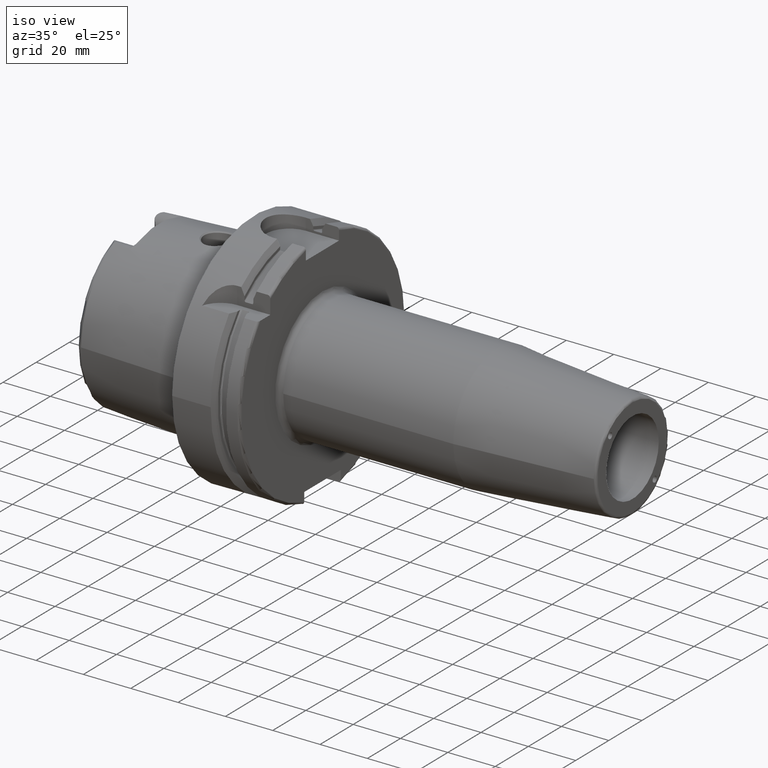
[diagram: clean part render]
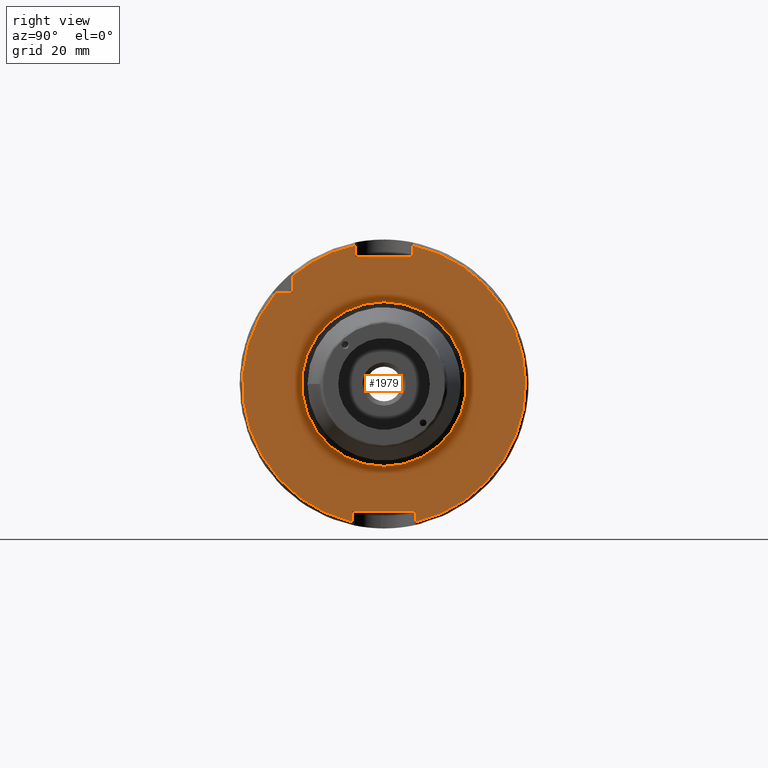
[diagram: tour spotlight — one face highlighted and labeled with its STEP entity id]
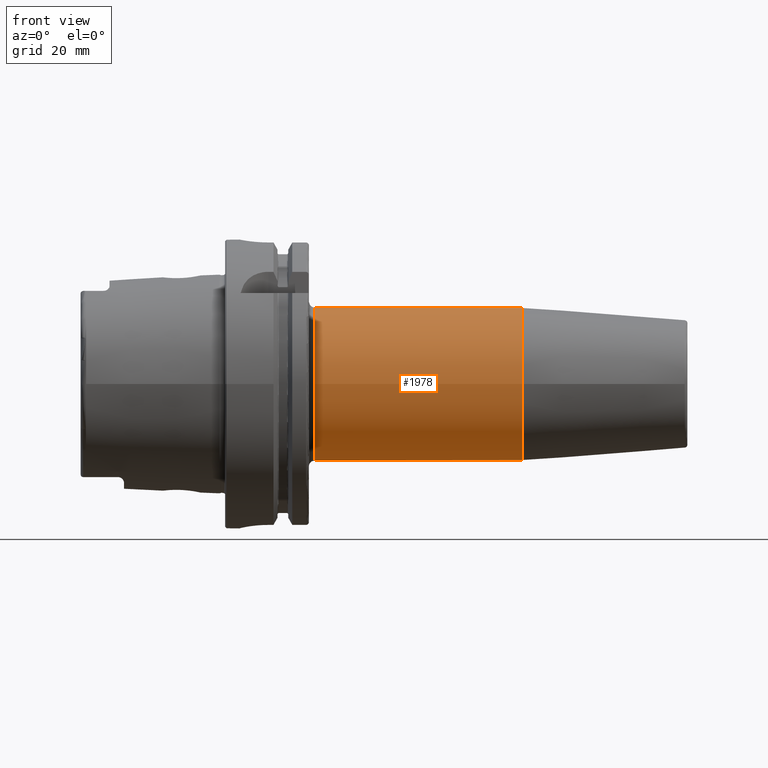
[diagram: tour spotlight — one face highlighted and labeled with its STEP entity id]
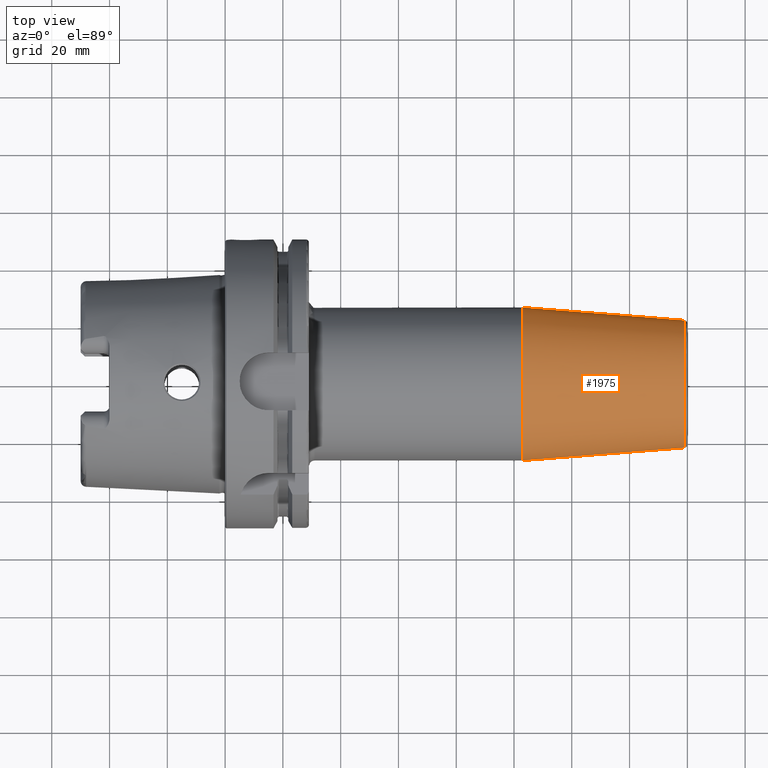
[diagram: tour spotlight — one face highlighted and labeled with its STEP entity id]
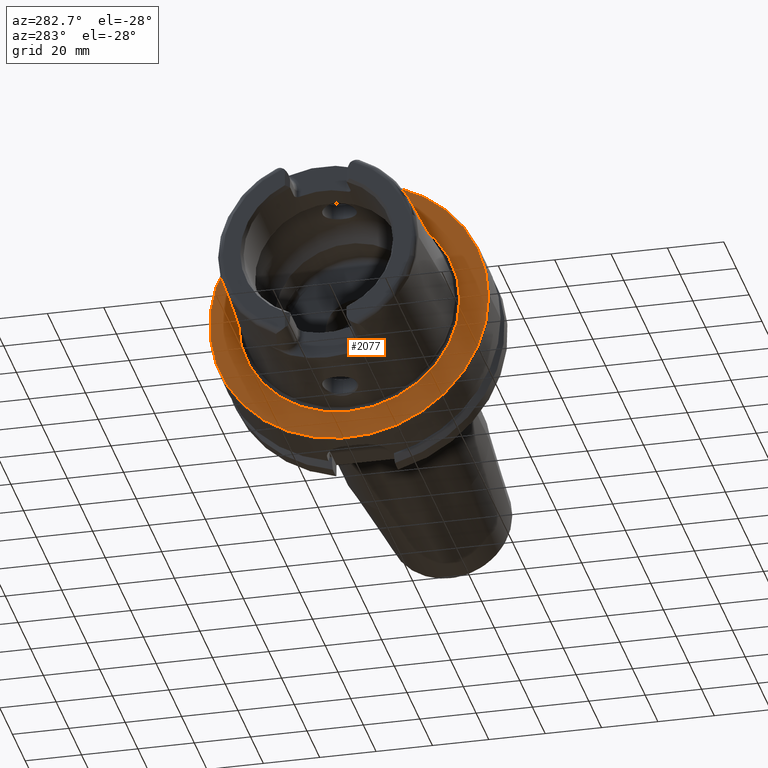
[diagram: tour spotlight — one face highlighted and labeled with its STEP entity id]
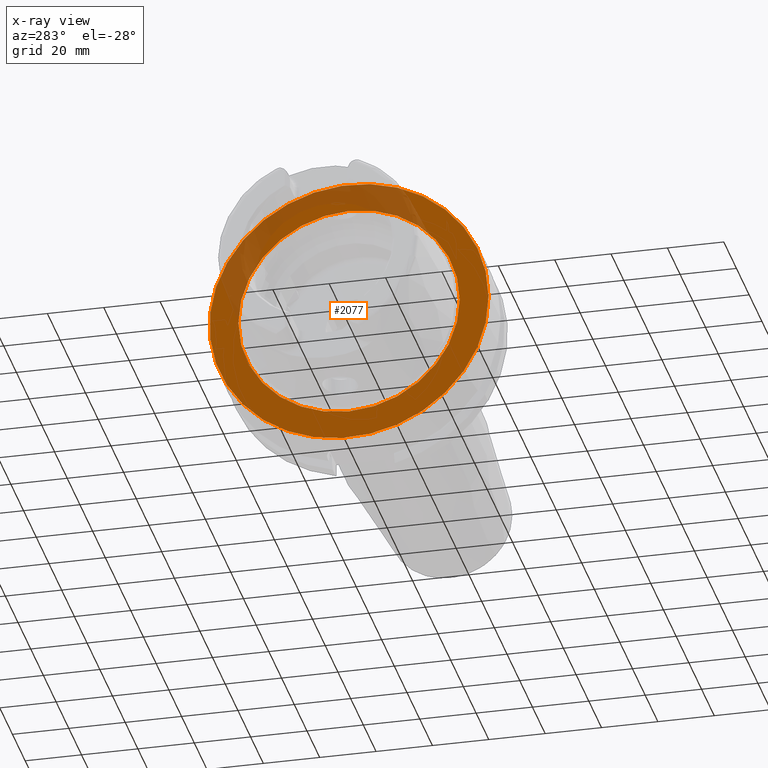
[diagram: x-ray of the same camera — body ghosted, this tour face saturated]
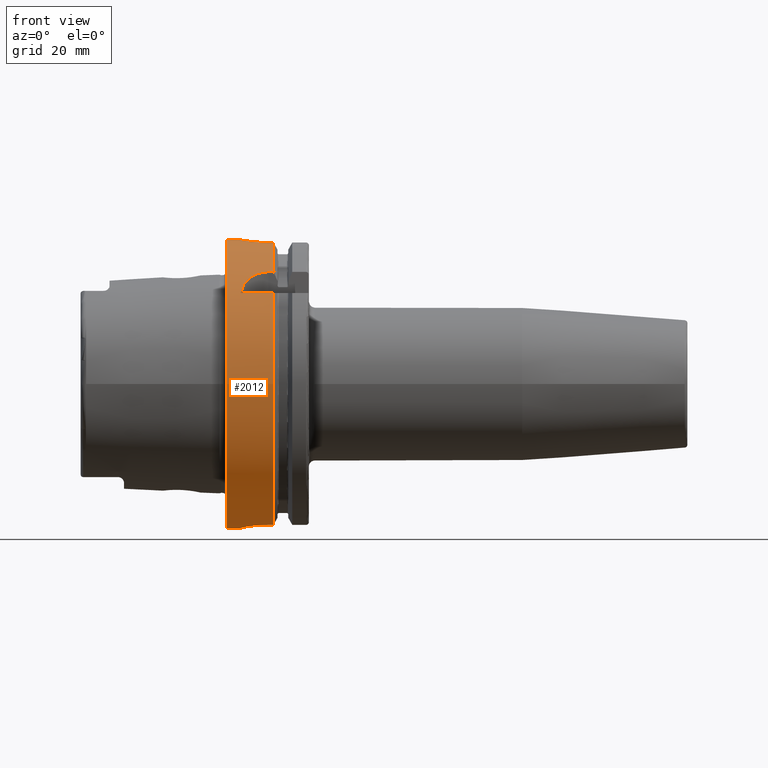
[diagram: tour spotlight — one face highlighted and labeled with its STEP entity id]
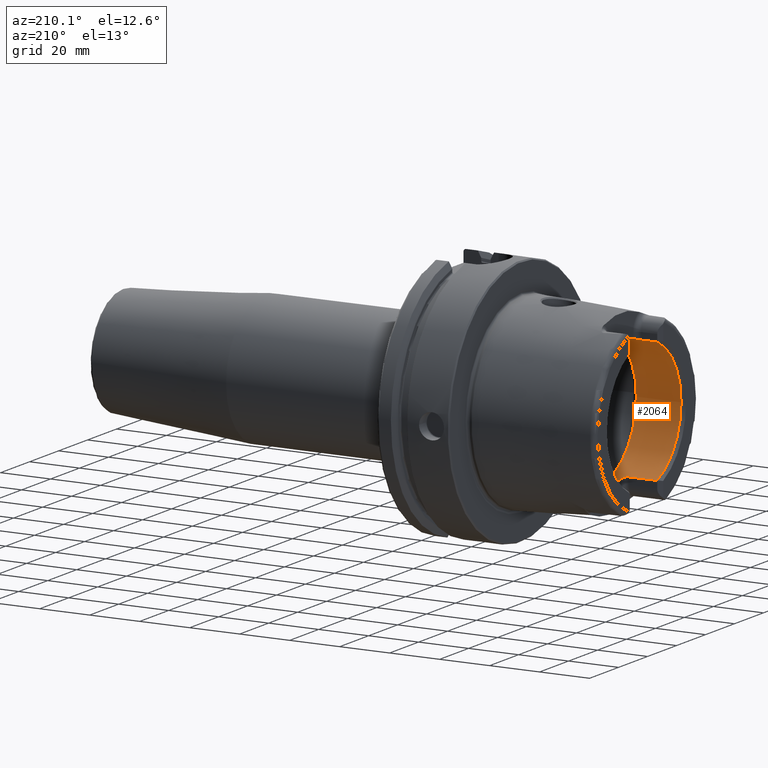
[diagram: tour spotlight — one face highlighted and labeled with its STEP entity id]
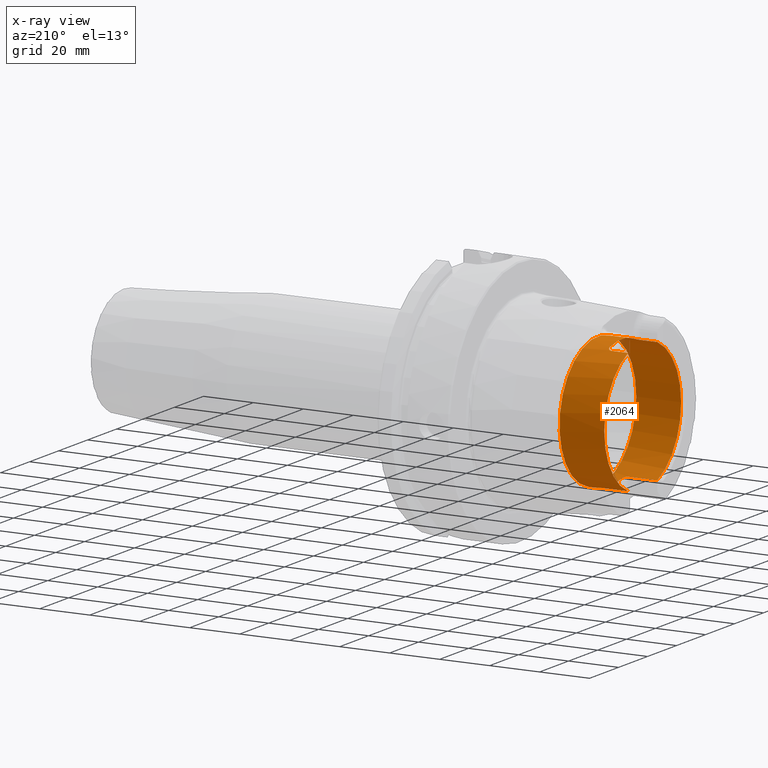
[diagram: x-ray of the same camera — body ghosted, this tour face saturated]
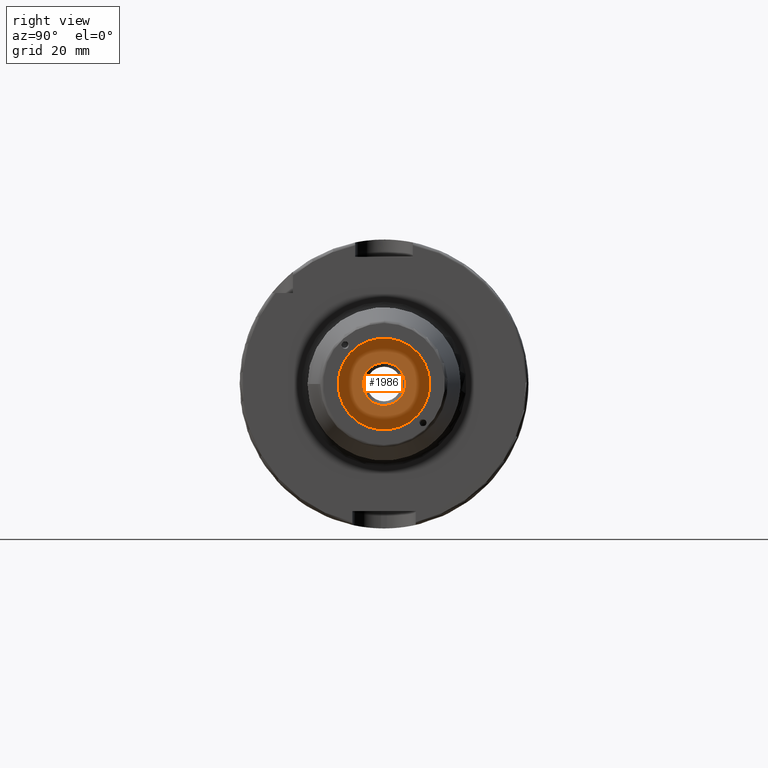
[diagram: tour spotlight — one face highlighted and labeled with its STEP entity id]
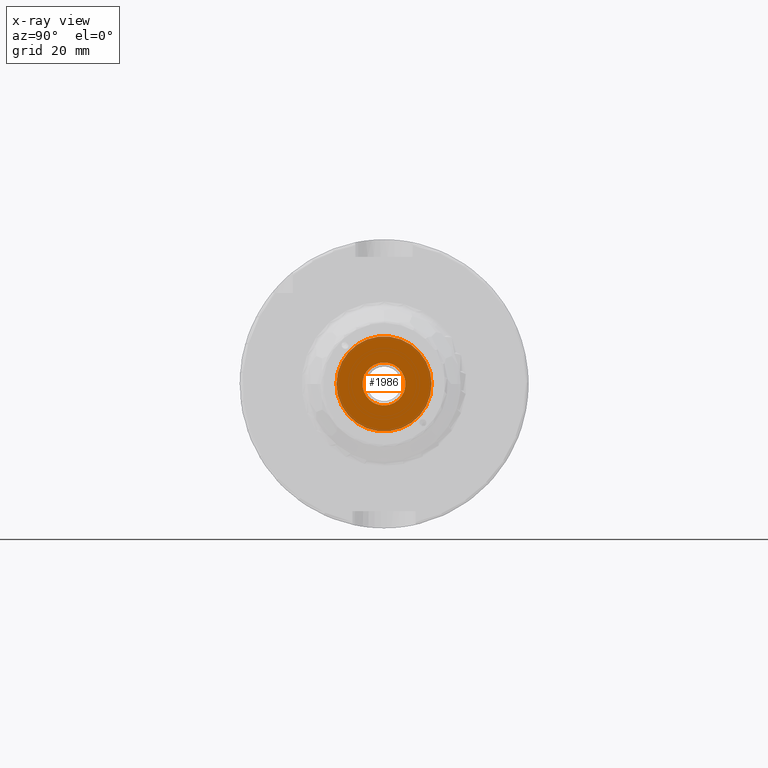
[diagram: x-ray of the same camera — body ghosted, this tour face saturated]
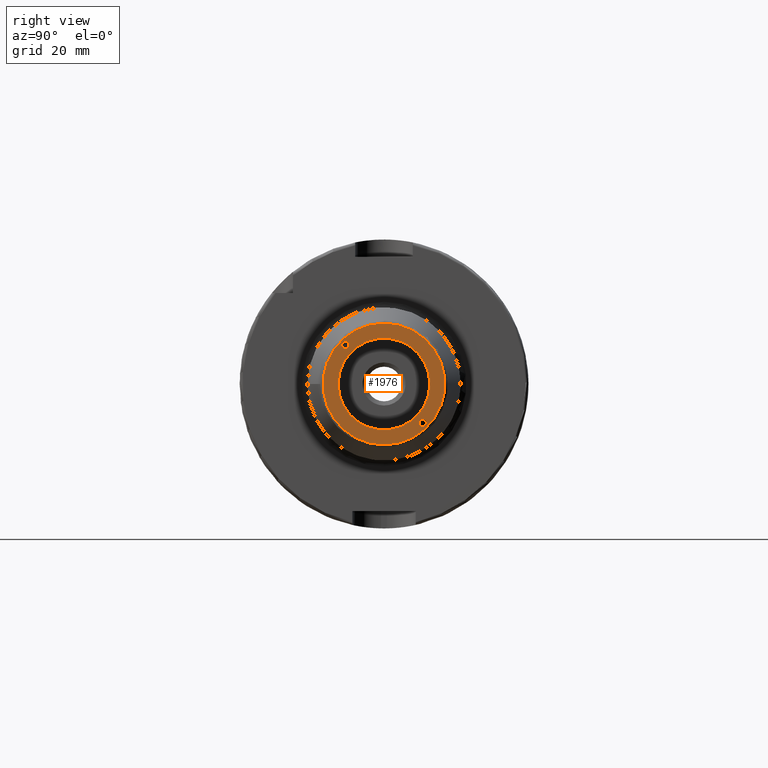
[diagram: tour spotlight — one face highlighted and labeled with its STEP entity id]
A machine part: a face-by-face anatomy tour. The part has 119 B-rep faces; the first image is the clean iso view, then the 8 largest visible faces are spotlighted one at a time (largest first), each with its STEP entity span.

Face 1 — right view, entity #1979. In plain terms, the highlighted planar face has unit normal (1, 0, 0).
Definition (entity closure, byte-faithful):
#88=FACE_BOUND('',#340,.T.);
#99=PLANE('',#2135);
#217=FACE_OUTER_BOUND('',#339,.T.);
#339=EDGE_LOOP('',(#1361,#1362,#1363,#1364,#1365,#1366,#1367,#1368,#1369,
#1370,#1371));
#340=EDGE_LOOP('',(#1372));
#465=LINE('',#3039,#572);
#466=LINE('',#3043,#573);
#467=LINE('',#3045,#574);
#468=LINE('',#3047,#575);
#469=LINE('',#3051,#576);
#470=LINE('',#3053,#577);
#471=LINE('',#3055,#578);
#472=LINE('',#3058,#579);
#572=VECTOR('',#2425,10.);
#573=VECTOR('',#2428,10.);
#574=VECTOR('',#2429,10.);
#575=VECTOR('',#2430,10.);
#576=VECTOR('',#2433,10.);
#577=VECTOR('',#2434,10.);
#578=VECTOR('',#2435,10.);
#579=VECTOR('',#2438,10.);
#683=CIRCLE('',#2132,28.5);
#685=CIRCLE('',#2136,49.);
#686=CIRCLE('',#2137,49.);
#687=CIRCLE('',#2138,49.);
#816=VERTEX_POINT('',#3030);
#817=VERTEX_POINT('',#3037);
#818=VERTEX_POINT('',#3038);
#819=VERTEX_POINT('',#3040);
#820=VERTEX_POINT('',#3042);
#821=VERTEX_POINT('',#3044);
#822=VERTEX_POINT('',#3046);
#823=VERTEX_POINT('',#3048);
#824=VERTEX_POINT('',#3050);
#825=VERTEX_POINT('',#3052);
#826=VERTEX_POINT('',#3054);
#827=VERTEX_POINT('',#3056);
#1025=EDGE_CURVE('',#816,#816,#683,.T.);
#1028=EDGE_CURVE('',#817,#818,#465,.T.);
#1029=EDGE_CURVE('',#818,#819,#685,.T.);
#1030=EDGE_CURVE('',#819,#820,#466,.T.);
#1031=EDGE_CURVE('',#820,#821,#467,.T.);
#1032=EDGE_CURVE('',#821,#822,#468,.T.);
#1033=EDGE_CURVE('',#822,#823,#686,.T.);
#1034=EDGE_CURVE('',#823,#824,#469,.T.);
#1035=EDGE_CURVE('',#824,#825,#470,.T.);
#1036=EDGE_CURVE('',#825,#826,#471,.T.);
#1037=EDGE_CURVE('',#826,#827,#687,.T.);
#1038=EDGE_CURVE('',#827,#817,#472,.T.);
#1361=ORIENTED_EDGE('',*,*,#1028,.T.);
#1362=ORIENTED_EDGE('',*,*,#1029,.T.);
#1363=ORIENTED_EDGE('',*,*,#1030,.T.);
#1364=ORIENTED_EDGE('',*,*,#1031,.T.);
#1365=ORIENTED_EDGE('',*,*,#1032,.T.);
#1366=ORIENTED_EDGE('',*,*,#1033,.T.);
#1367=ORIENTED_EDGE('',*,*,#1034,.T.);
#1368=ORIENTED_EDGE('',*,*,#1035,.T.);
#1369=ORIENTED_EDGE('',*,*,#1036,.T.);
#1370=ORIENTED_EDGE('',*,*,#1037,.T.);
#1371=ORIENTED_EDGE('',*,*,#1038,.T.);
#1372=ORIENTED_EDGE('',*,*,#1025,.F.);
#1979=ADVANCED_FACE('',(#217,#88),#99,.T.);
#2132=AXIS2_PLACEMENT_3D('',#3032,#2416,#2417);
#2135=AXIS2_PLACEMENT_3D('',#3036,#2423,#2424);
#2136=AXIS2_PLACEMENT_3D('',#3041,#2426,#2427);
#2137=AXIS2_PLACEMENT_3D('',#3049,#2431,#2432);
#2138=AXIS2_PLACEMENT_3D('',#3057,#2436,#2437);
#2416=DIRECTION('center_axis',(1.,0.,0.));
#2417=DIRECTION('ref_axis',(0.,-1.,-1.22464679914735E-16));
#2423=DIRECTION('center_axis',(1.,0.,0.));
#2424=DIRECTION('ref_axis',(0.,0.,-1.));
#2425=DIRECTION('',(0.,-1.,0.));
#2426=DIRECTION('center_axis',(1.,0.,0.));
#2427=DIRECTION('ref_axis',(0.,0.,-1.));
#2428=DIRECTION('',(0.,0.,1.));
#2429=DIRECTION('',(0.,1.,0.));
#2430=DIRECTION('',(0.,0.,-1.));
#2431=DIRECTION('center_axis',(1.,0.,0.));
#2432=DIRECTION('ref_axis',(0.,0.,-1.));
#2433=DIRECTION('',(0.,0.,-1.));
#2434=DIRECTION('',(0.,-1.,0.));
#2435=DIRECTION('',(0.,0.,1.));
#2436=DIRECTION('center_axis',(1.,0.,0.));
#2437=DIRECTION('ref_axis',(0.,0.,-1.));
#2438=DIRECTION('',(0.,0.,-1.));
#3030=CARTESIAN_POINT('',(29.,-3.49024337756996E-15,-28.5));
#3032=CARTESIAN_POINT('Origin',(29.,0.,0.));
#3036=CARTESIAN_POINT('Origin',(29.,0.,0.));
#3037=CARTESIAN_POINT('',(29.,-31.5,31.5));
#3038=CARTESIAN_POINT('',(29.,-37.5333185316726,31.5));
#3039=CARTESIAN_POINT('',(29.,-18.25,31.5));
#3040=CARTESIAN_POINT('',(29.,-11.,-47.7493455452533));
#3041=CARTESIAN_POINT('Origin',(29.,0.,0.));
#3042=CARTESIAN_POINT('',(29.,-11.,-44.));
#3043=CARTESIAN_POINT('',(29.,-11.,-22.));
#3044=CARTESIAN_POINT('',(29.,11.,-44.));
#3045=CARTESIAN_POINT('',(29.,-5.55111512312578E-16,-44.));
#3046=CARTESIAN_POINT('',(29.,11.,-47.7493455452533));
#3047=CARTESIAN_POINT('',(29.,11.,-22.));
#3048=CARTESIAN_POINT('',(29.,10.,47.9687398208458));
#3049=CARTESIAN_POINT('Origin',(29.,0.,0.));
#3050=CARTESIAN_POINT('',(29.,10.,44.));
#3051=CARTESIAN_POINT('',(29.,10.,22.));
#3052=CARTESIAN_POINT('',(29.,-10.,44.));
#3053=CARTESIAN_POINT('',(29.,0.,44.));
#3054=CARTESIAN_POINT('',(29.,-10.,47.9687398208458));
#3055=CARTESIAN_POINT('',(29.,-10.,22.));
#3056=CARTESIAN_POINT('',(29.,-31.5,37.5333185316726));
#3057=CARTESIAN_POINT('Origin',(29.,0.,0.));
#3058=CARTESIAN_POINT('',(29.,-31.5,15.75));

Face 2 — front view, entity #1978. In plain terms, the highlighted cylindrical surface (bore or boss wall) has radius 26.5 mm, axis along (1, 0, 0).
Definition (entity closure, byte-faithful):
#173=CYLINDRICAL_SURFACE('',#2134,26.5);
#216=FACE_OUTER_BOUND('',#338,.T.);
#338=EDGE_LOOP('',(#1356,#1357,#1358,#1359,#1360));
#464=LINE('',#3035,#571);
#571=VECTOR('',#2422,26.5);
#679=CIRCLE('',#2126,26.5);
#681=CIRCLE('',#2130,26.5);
#684=CIRCLE('',#2133,26.5);
#812=VERTEX_POINT('',#3020);
#814=VERTEX_POINT('',#3027);
#815=VERTEX_POINT('',#3028);
#1021=EDGE_CURVE('',#812,#812,#679,.T.);
#1023=EDGE_CURVE('',#814,#815,#681,.T.);
#1026=EDGE_CURVE('',#815,#814,#684,.T.);
#1027=EDGE_CURVE('',#812,#814,#464,.T.);
#1356=ORIENTED_EDGE('',*,*,#1021,.F.);
#1357=ORIENTED_EDGE('',*,*,#1027,.T.);
#1358=ORIENTED_EDGE('',*,*,#1026,.F.);
#1359=ORIENTED_EDGE('',*,*,#1023,.F.);
#1360=ORIENTED_EDGE('',*,*,#1027,.F.);
#1978=ADVANCED_FACE('',(#216),#173,.T.);
#2126=AXIS2_PLACEMENT_3D('',#3022,#2404,#2405);
#2130=AXIS2_PLACEMENT_3D('',#3029,#2412,#2413);
#2133=AXIS2_PLACEMENT_3D('',#3033,#2418,#2419);
#2134=AXIS2_PLACEMENT_3D('',#3034,#2420,#2421);
#2404=DIRECTION('center_axis',(1.,0.,0.));
#2405=DIRECTION('ref_axis',(0.,0.,-1.));
#2412=DIRECTION('center_axis',(-1.,0.,0.));
#2413=DIRECTION('ref_axis',(0.,-1.,-1.22464679914735E-16));
#2418=DIRECTION('center_axis',(-1.,0.,0.));
#2419=DIRECTION('ref_axis',(0.,-1.,-1.22464679914735E-16));
#2420=DIRECTION('center_axis',(1.,0.,0.));
#2421=DIRECTION('ref_axis',(0.,1.,0.));
#2422=DIRECTION('',(-1.,0.,0.));
#3020=CARTESIAN_POINT('',(102.822078687214,-26.5,-3.24531401774049E-15));
#3022=CARTESIAN_POINT('Origin',(102.822078687214,0.,0.));
#3027=CARTESIAN_POINT('',(31.,-26.5,-3.24531401774049E-15));
#3028=CARTESIAN_POINT('',(31.,-3.24531401774049E-15,-26.5));
#3029=CARTESIAN_POINT('Origin',(31.,0.,0.));
#3033=CARTESIAN_POINT('Origin',(31.,0.,0.));
#3034=CARTESIAN_POINT('Origin',(65.9110393436069,0.,0.));
#3035=CARTESIAN_POINT('',(65.9110393436069,-26.5,-3.24531401774049E-15));

Face 3 — top view, entity #1975. In plain terms, the highlighted conical surface has half-angle 4.5 deg.
Definition (entity closure, byte-faithful):
#213=FACE_OUTER_BOUND('',#332,.T.);
#332=EDGE_LOOP('',(#1342,#1343,#1344,#1345,#1346));
#463=LINE('',#3021,#570);
#570=VECTOR('',#2403,24.25);
#677=CIRCLE('',#2123,22.0725268420749);
#678=CIRCLE('',#2124,22.0725268420749);
#679=CIRCLE('',#2126,26.5);
#810=VERTEX_POINT('',#3014);
#811=VERTEX_POINT('',#3016);
#812=VERTEX_POINT('',#3020);
#1018=EDGE_CURVE('',#810,#811,#677,.T.);
#1019=EDGE_CURVE('',#811,#810,#678,.T.);
#1020=EDGE_CURVE('',#811,#812,#463,.T.);
#1021=EDGE_CURVE('',#812,#812,#679,.T.);
#1342=ORIENTED_EDGE('',*,*,#1019,.F.);
#1343=ORIENTED_EDGE('',*,*,#1020,.T.);
#1344=ORIENTED_EDGE('',*,*,#1021,.T.);
#1345=ORIENTED_EDGE('',*,*,#1020,.F.);
#1346=ORIENTED_EDGE('',*,*,#1018,.F.);
#1955=CONICAL_SURFACE('',#2125,24.25,0.0785398163397448);
#1975=ADVANCED_FACE('',(#213),#1955,.T.);
#2123=AXIS2_PLACEMENT_3D('',#3017,#2397,#2398);
#2124=AXIS2_PLACEMENT_3D('',#3018,#2399,#2400);
#2125=AXIS2_PLACEMENT_3D('',#3019,#2401,#2402);
#2126=AXIS2_PLACEMENT_3D('',#3022,#2404,#2405);
#2397=DIRECTION('center_axis',(1.,0.,0.));
#2398=DIRECTION('ref_axis',(0.,-1.,3.06161699786838E-17));
#2399=DIRECTION('center_axis',(1.,0.,0.));
#2400=DIRECTION('ref_axis',(0.,-1.,3.06161699786838E-17));
#2401=DIRECTION('center_axis',(-1.,0.,0.));
#2402=DIRECTION('ref_axis',(0.,1.,0.));
#2403=DIRECTION('',(-0.996917333733128,-0.0784590957278449,-9.60846804471011E-18));
#2404=DIRECTION('center_axis',(1.,0.,0.));
#2405=DIRECTION('ref_axis',(0.,0.,-1.));
#3014=CARTESIAN_POINT('',(159.078459095728,-2.70310493462411E-15,22.0725268420749));
#3016=CARTESIAN_POINT('',(159.078459095728,-22.0725268420749,-2.70310493462411E-15));
#3017=CARTESIAN_POINT('Origin',(159.078459095728,0.,-3.37888116828014E-15));
#3018=CARTESIAN_POINT('Origin',(159.078459095728,0.,-3.37888116828014E-15));
#3019=CARTESIAN_POINT('Origin',(131.411039343607,0.,0.));
#3020=CARTESIAN_POINT('',(102.822078687214,-26.5,-3.24531401774049E-15));
#3021=CARTESIAN_POINT('',(131.411039343607,-24.25,-2.96976848793233E-15));
#3022=CARTESIAN_POINT('Origin',(102.822078687214,0.,0.));

Face 4 — auxiliary view, entity #2077. An x-ray twin of the same camera follows (body ghosted, this face saturated) — the face is partly hidden behind the body. In plain terms, the highlighted planar face has unit normal (-1, 0, 0).
Definition (entity closure, byte-faithful):
#97=FACE_BOUND('',#447,.T.);
#133=PLANE('',#2346);
#315=FACE_OUTER_BOUND('',#446,.T.);
#446=EDGE_LOOP('',(#1903));
#447=EDGE_LOOP('',(#1904));
#791=CIRCLE('',#2345,39.2747800249997);
#792=CIRCLE('',#2347,49.5);
#1003=VERTEX_POINT('',#4477);
#1004=VERTEX_POINT('',#4481);
#1308=EDGE_CURVE('',#1003,#1003,#791,.T.);
#1309=EDGE_CURVE('',#1004,#1004,#792,.T.);
#1903=ORIENTED_EDGE('',*,*,#1309,.F.);
#1904=ORIENTED_EDGE('',*,*,#1308,.T.);
#2077=ADVANCED_FACE('',(#315,#97),#133,.T.);
#2345=AXIS2_PLACEMENT_3D('',#4479,#2941,#2942);
#2346=AXIS2_PLACEMENT_3D('',#4480,#2943,#2944);
#2347=AXIS2_PLACEMENT_3D('',#4482,#2945,#2946);
#2941=DIRECTION('center_axis',(1.,0.,0.));
#2942=DIRECTION('ref_axis',(0.,0.,-1.));
#2943=DIRECTION('center_axis',(-1.,0.,0.));
#2944=DIRECTION('ref_axis',(0.,0.,1.));
#2945=DIRECTION('center_axis',(1.,0.,0.));
#2946=DIRECTION('ref_axis',(0.,0.,-1.));
#4477=CARTESIAN_POINT('',(-1.04950770296597E-15,-39.2747800249997,-4.80977336448322E-15));
#4479=CARTESIAN_POINT('Origin',(0.,0.,0.));
#4480=CARTESIAN_POINT('Origin',(0.,49.5,0.));
#4481=CARTESIAN_POINT('',(1.28369537222284E-15,-49.5,-6.0620016557794E-15));
#4482=CARTESIAN_POINT('Origin',(0.,0.,0.));

Face 5 — front view, entity #2012. In plain terms, the highlighted cylindrical surface (bore or boss wall) has radius 50 mm, axis along (1, 0, 0).
Definition (entity closure, byte-faithful):
#56=B_SPLINE_CURVE_WITH_KNOTS('',3,(#3833,#3834,#3835,#3836,#3837,#3838,
#3839,#3840,#3841,#3842,#3843,#3844,#3845,#3846,#3847,#3848,#3849,#3850,
#3851,#3852,#3853,#3854,#3855,#3856,#3857,#3858),.UNSPECIFIED.,.F.,.F.,
(4,2,2,2,2,2,2,2,2,2,2,2,4),(0.,0.188478911015149,0.376957822030298,0.565436091508923,
0.753914360987547,0.942392630466172,1.1308708999448,1.31934981095995,1.50782872197509,
1.69630763299024,1.88478654400539,2.07326481348402,2.26174308296264),
 .UNSPECIFIED.);
#57=B_SPLINE_CURVE_WITH_KNOTS('',3,(#3859,#3860,#3861,#3862,#3863,#3864,
#3865,#3866,#3867,#3868),.UNSPECIFIED.,.F.,.F.,(4,2,2,2,4),(2.26174308296264,
2.45022135244127,2.63869962191989,2.82717853293504,3.01565744395019),
 .UNSPECIFIED.);
#58=B_SPLINE_CURVE_WITH_KNOTS('',3,(#3872,#3873,#3874,#3875,#3876,#3877,
#3878,#3879,#3880,#3881,#3882,#3883),.UNSPECIFIED.,.F.,.F.,(4,2,2,2,2,4),
(1.13213255574021,1.59216410027009,1.87572541272146,2.15928672517283,2.38471683342296,
2.61014694167308),.UNSPECIFIED.);
#65=B_SPLINE_CURVE_WITH_KNOTS('',3,(#3996,#3997,#3998,#3999,#4000,#4001,
#4002,#4003,#4004,#4005,#4006,#4007,#4008,#4009,#4010,#4011,#4012,#4013),
 .UNSPECIFIED.,.F.,.F.,(4,2,2,2,2,2,2,2,4),(0.,0.377795255890194,0.755590511780389,
1.13336459804459,1.51113868430879,1.88891277057299,2.26668685683718,2.64448211272738,
3.02227736861757),.UNSPECIFIED.);
#66=B_SPLINE_CURVE_WITH_KNOTS('',3,(#4021,#4022,#4023,#4024,#4025,#4026,
#4027,#4028,#4029,#4030),.UNSPECIFIED.,.F.,.F.,(4,2,2,2,4),(0.,0.377863193874929,
0.755726387749858,1.13417752669663,1.51262866564341),.UNSPECIFIED.);
#67=B_SPLINE_CURVE_WITH_KNOTS('',3,(#4034,#4035,#4036,#4037,#4038,#4039,
#4040,#4041,#4042,#4043),.UNSPECIFIED.,.F.,.F.,(4,2,2,2,4),(1.50996806152532,
1.8884192004721,2.26687033941887,2.6447335332938,3.02259672716873),
 .UNSPECIFIED.);
#93=FACE_BOUND('',#378,.T.);
#186=CYLINDRICAL_SURFACE('',#2216,50.);
#250=FACE_OUTER_BOUND('',#377,.T.);
#377=EDGE_LOOP('',(#1565,#1566,#1567,#1568,#1569,#1570,#1571,#1572,#1573,
#1574,#1575,#1576,#1577,#1578,#1579,#1580,#1581,#1582));
#378=EDGE_LOOP('',(#1583,#1584));
#504=LINE('',#3889,#611);
#510=LINE('',#3941,#617);
#515=LINE('',#3994,#622);
#516=LINE('',#4015,#623);
#517=LINE('',#4019,#624);
#518=LINE('',#4045,#625);
#519=LINE('',#4049,#626);
#611=VECTOR('',#2622,10.);
#617=VECTOR('',#2630,10.);
#622=VECTOR('',#2639,10.);
#623=VECTOR('',#2640,10.);
#624=VECTOR('',#2643,10.);
#625=VECTOR('',#2646,10.);
#626=VECTOR('',#2649,50.);
#727=CIRCLE('',#2217,50.);
#728=CIRCLE('',#2218,50.);
#729=CIRCLE('',#2219,50.);
#730=CIRCLE('',#2220,50.);
#731=CIRCLE('',#2221,50.);
#732=CIRCLE('',#2222,50.);
#903=VERTEX_POINT('',#3830);
#904=VERTEX_POINT('',#3832);
#905=VERTEX_POINT('',#3870);
#906=VERTEX_POINT('',#3871);
#908=VERTEX_POINT('',#3888);
#917=VERTEX_POINT('',#3940);
#926=VERTEX_POINT('',#3991);
#927=VERTEX_POINT('',#3993);
#928=VERTEX_POINT('',#3995);
#929=VERTEX_POINT('',#4014);
#930=VERTEX_POINT('',#4016);
#931=VERTEX_POINT('',#4018);
#932=VERTEX_POINT('',#4020);
#933=VERTEX_POINT('',#4031);
#934=VERTEX_POINT('',#4033);
#935=VERTEX_POINT('',#4044);
#936=VERTEX_POINT('',#4046);
#937=VERTEX_POINT('',#4048);
#1142=EDGE_CURVE('',#904,#903,#56,.T.);
#1143=EDGE_CURVE('',#903,#904,#57,.T.);
#1144=EDGE_CURVE('',#905,#906,#58,.T.);
#1147=EDGE_CURVE('',#906,#908,#504,.T.);
#1158=EDGE_CURVE('',#917,#905,#510,.T.);
#1168=EDGE_CURVE('',#926,#908,#727,.T.);
#1169=EDGE_CURVE('',#926,#927,#515,.T.);
#1170=EDGE_CURVE('',#927,#928,#65,.T.);
#1171=EDGE_CURVE('',#928,#929,#516,.T.);
#1172=EDGE_CURVE('',#930,#929,#728,.T.);
#1173=EDGE_CURVE('',#930,#931,#517,.T.);
#1174=EDGE_CURVE('',#931,#932,#66,.T.);
#1175=EDGE_CURVE('',#932,#933,#729,.T.);
#1176=EDGE_CURVE('',#933,#934,#67,.T.);
#1177=EDGE_CURVE('',#934,#935,#518,.T.);
#1178=EDGE_CURVE('',#936,#935,#730,.T.);
#1179=EDGE_CURVE('',#936,#937,#519,.T.);
#1180=EDGE_CURVE('',#937,#937,#731,.T.);
#1181=EDGE_CURVE('',#917,#936,#732,.T.);
#1565=ORIENTED_EDGE('',*,*,#1158,.T.);
#1566=ORIENTED_EDGE('',*,*,#1144,.T.);
#1567=ORIENTED_EDGE('',*,*,#1147,.T.);
#1568=ORIENTED_EDGE('',*,*,#1168,.F.);
#1569=ORIENTED_EDGE('',*,*,#1169,.T.);
#1570=ORIENTED_EDGE('',*,*,#1170,.T.);
#1571=ORIENTED_EDGE('',*,*,#1171,.T.);
#1572=ORIENTED_EDGE('',*,*,#1172,.F.);
#1573=ORIENTED_EDGE('',*,*,#1173,.T.);
#1574=ORIENTED_EDGE('',*,*,#1174,.T.);
#1575=ORIENTED_EDGE('',*,*,#1175,.T.);
#1576=ORIENTED_EDGE('',*,*,#1176,.T.);
#1577=ORIENTED_EDGE('',*,*,#1177,.T.);
#1578=ORIENTED_EDGE('',*,*,#1178,.F.);
#1579=ORIENTED_EDGE('',*,*,#1179,.T.);
#1580=ORIENTED_EDGE('',*,*,#1180,.T.);
#1581=ORIENTED_EDGE('',*,*,#1179,.F.);
#1582=ORIENTED_EDGE('',*,*,#1181,.F.);
#1583=ORIENTED_EDGE('',*,*,#1142,.T.);
#1584=ORIENTED_EDGE('',*,*,#1143,.T.);
#2012=ADVANCED_FACE('',(#250,#93),#186,.T.);
#2216=AXIS2_PLACEMENT_3D('',#3990,#2635,#2636);
#2217=AXIS2_PLACEMENT_3D('',#3992,#2637,#2638);
#2218=AXIS2_PLACEMENT_3D('',#4017,#2641,#2642);
#2219=AXIS2_PLACEMENT_3D('',#4032,#2644,#2645);
#2220=AXIS2_PLACEMENT_3D('',#4047,#2647,#2648);
#2221=AXIS2_PLACEMENT_3D('',#4050,#2650,#2651);
#2222=AXIS2_PLACEMENT_3D('',#4051,#2652,#2653);
#2622=DIRECTION('',(1.,0.,0.));
#2630=DIRECTION('',(-1.,0.,0.));
#2635=DIRECTION('center_axis',(1.,0.,0.));
#2636=DIRECTION('ref_axis',(0.,1.,0.));
#2637=DIRECTION('center_axis',(1.,0.,0.));
#2638=DIRECTION('ref_axis',(0.,0.,-1.));
#2639=DIRECTION('',(-1.,0.,0.));
#2640=DIRECTION('',(1.,0.,0.));
#2641=DIRECTION('center_axis',(1.,0.,0.));
#2642=DIRECTION('ref_axis',(0.,0.,-1.));
#2643=DIRECTION('',(-1.,0.,0.));
#2644=DIRECTION('center_axis',(-1.,0.,0.));
#2645=DIRECTION('ref_axis',(0.,1.,0.));
#2646=DIRECTION('',(1.,0.,0.));
#2647=DIRECTION('center_axis',(1.,0.,0.));
#2648=DIRECTION('ref_axis',(0.,0.,-1.));
#2649=DIRECTION('',(-1.,0.,0.));
#2650=DIRECTION('center_axis',(1.,0.,0.));
#2651=DIRECTION('ref_axis',(0.,0.,-1.));
#2652=DIRECTION('center_axis',(1.,0.,0.));
#2653=DIRECTION('ref_axis',(0.,0.,-1.));
#3830=CARTESIAN_POINT('',(12.,50.,-6.12323399573677E-16));
#3832=CARTESIAN_POINT('',(6.99999999999999,49.749371855331,5.));
#3833=CARTESIAN_POINT('Ctrl Pts',(6.99999999999999,49.749371855331,5.));
#3834=CARTESIAN_POINT('Ctrl Pts',(6.37173696328283,49.749371855331,5.));
#3835=CARTESIAN_POINT('Ctrl Pts',(5.70188570880885,49.7624993987098,4.87435544587055));
#3836=CARTESIAN_POINT('Ctrl Pts',(4.4701142477173,49.8098541153698,4.36395693611591));
#3837=CARTESIAN_POINT('Ctrl Pts',(3.90815809537484,49.8433908660961,3.97922590724033));
#3838=CARTESIAN_POINT('Ctrl Pts',(3.02077560297968,49.9062957431473,3.09184341484517));
#3839=CARTESIAN_POINT('Ctrl Pts',(2.63604339567929,49.9397591808605,2.52988660036719));
#3840=CARTESIAN_POINT('Ctrl Pts',(2.12564400622109,49.9869460568296,1.29811292154946));
#3841=CARTESIAN_POINT('Ctrl Pts',(1.99999999999999,50.,0.628260898262081));
#3842=CARTESIAN_POINT('Ctrl Pts',(1.99999999999999,50.,-0.628260898262082));
#3843=CARTESIAN_POINT('Ctrl Pts',(2.12564400622109,49.9869460568296,-1.29811292154946));
#3844=CARTESIAN_POINT('Ctrl Pts',(2.63604339567929,49.9397591808605,-2.52988660036719));
#3845=CARTESIAN_POINT('Ctrl Pts',(3.02077560297968,49.9062957431473,-3.09184341484517));
#3846=CARTESIAN_POINT('Ctrl Pts',(3.90815809537484,49.8433908660961,-3.97922590724033));
#3847=CARTESIAN_POINT('Ctrl Pts',(4.4701142477173,49.8098541153698,-4.36395693611591));
#3848=CARTESIAN_POINT('Ctrl Pts',(5.70188570880885,49.7624993987098,-4.87435544587055));
#3849=CARTESIAN_POINT('Ctrl Pts',(6.37173696328283,49.749371855331,-5.));
#3850=CARTESIAN_POINT('Ctrl Pts',(7.62826303671716,49.749371855331,-5.));
#3851=CARTESIAN_POINT('Ctrl Pts',(8.29811429119113,49.7624993987098,-4.87435544587055));
#3852=CARTESIAN_POINT('Ctrl Pts',(9.52988575228269,49.8098541153698,-4.36395693611591));
#3853=CARTESIAN_POINT('Ctrl Pts',(10.0918419046251,49.8433908660961,-3.97922590724033));
#3854=CARTESIAN_POINT('Ctrl Pts',(10.9792243970203,49.9062957431473,-3.09184341484517));
#3855=CARTESIAN_POINT('Ctrl Pts',(11.3639566043207,49.9397591808605,-2.52988660036719));
#3856=CARTESIAN_POINT('Ctrl Pts',(11.8743559937789,49.9869460568296,-1.29811292154947));
#3857=CARTESIAN_POINT('Ctrl Pts',(12.,50.,-0.628260898262083));
#3858=CARTESIAN_POINT('Ctrl Pts',(12.,50.,-5.55111512312578E-16));
#3859=CARTESIAN_POINT('Ctrl Pts',(12.,50.,-5.55111512312578E-16));
#3860=CARTESIAN_POINT('Ctrl Pts',(12.,50.,0.628260898262082));
#3861=CARTESIAN_POINT('Ctrl Pts',(11.8743559937789,49.9869460568296,1.29811292154946));
#3862=CARTESIAN_POINT('Ctrl Pts',(11.3639566043207,49.9397591808605,2.52988660036719));
#3863=CARTESIAN_POINT('Ctrl Pts',(10.9792243970203,49.9062957431473,3.09184341484517));
#3864=CARTESIAN_POINT('Ctrl Pts',(10.0918419046251,49.8433908660961,3.97922590724033));
#3865=CARTESIAN_POINT('Ctrl Pts',(9.52988575228269,49.8098541153698,4.36395693611591));
#3866=CARTESIAN_POINT('Ctrl Pts',(8.29811429119113,49.7624993987098,4.87435544587055));
#3867=CARTESIAN_POINT('Ctrl Pts',(7.62826303671716,49.749371855331,5.));
#3868=CARTESIAN_POINT('Ctrl Pts',(6.99999999999999,49.749371855331,5.));
#3870=CARTESIAN_POINT('',(5.36310214079494,-38.8297566307078,31.5));
#3871=CARTESIAN_POINT('',(15.,-31.5,38.8297566307078));
#3872=CARTESIAN_POINT('Ctrl Pts',(5.36310214079494,-38.8297566307078,31.5));
#3873=CARTESIAN_POINT('Ctrl Pts',(5.63795050776221,-37.8378299510303,32.722738779917));
#3874=CARTESIAN_POINT('Ctrl Pts',(6.08245260240086,-36.8264130955983,33.8486741193789));
#3875=CARTESIAN_POINT('Ctrl Pts',(7.14730321206235,-35.2667182945212,35.4540138707062));
#3876=CARTESIAN_POINT('Ctrl Pts',(7.68113760815893,-34.6306580359392,36.0741351437033));
#3877=CARTESIAN_POINT('Ctrl Pts',(8.97436758466638,-33.4722127660808,37.1515365058173));
#3878=CARTESIAN_POINT('Ctrl Pts',(9.73574998094174,-32.9521170857844,37.6088911783762));
#3879=CARTESIAN_POINT('Ctrl Pts',(11.1521999725134,-32.2432973482077,38.2170233500259));
#3880=CARTESIAN_POINT('Ctrl Pts',(11.8888981504148,-31.9629772872452,38.4503075998006));
#3881=CARTESIAN_POINT('Ctrl Pts',(13.4369856471743,-31.5908755949743,38.7566077888176));
#3882=CARTESIAN_POINT('Ctrl Pts',(14.2485663058329,-31.5,38.8297566307078));
#3883=CARTESIAN_POINT('Ctrl Pts',(15.,-31.5,38.8297566307078));
#3888=CARTESIAN_POINT('',(16.7379709790786,-31.5,38.8297566307078));
#3889=CARTESIAN_POINT('',(8.61898548953931,-31.5,38.8297566307078));
#3940=CARTESIAN_POINT('',(16.7379709790786,-38.8297566307078,31.5));
#3941=CARTESIAN_POINT('',(8.61898548953931,-38.8297566307078,31.5));
#3990=CARTESIAN_POINT('Origin',(8.61898548953931,0.,0.));
#3991=CARTESIAN_POINT('',(16.7379709790786,-10.,48.9897948556636));
#3992=CARTESIAN_POINT('Origin',(16.7379709790786,0.,0.));
#3993=CARTESIAN_POINT('',(15.,-10.,48.9897948556636));
#3994=CARTESIAN_POINT('',(8.61898548953931,-10.,48.9897948556636));
#3995=CARTESIAN_POINT('',(15.,10.,48.9897948556636));
#3996=CARTESIAN_POINT('Ctrl Pts',(15.,-10.,48.9897948556636));
#3997=CARTESIAN_POINT('Ctrl Pts',(13.740682480366,-10.,48.9897948556636));
#3998=CARTESIAN_POINT('Ctrl Pts',(12.3998222283811,-9.74762796248614,49.0433876618447));
#3999=CARTESIAN_POINT('Ctrl Pts',(9.93707994969945,-8.72605417648382,49.2354150792771));
#4000=CARTESIAN_POINT('Ctrl Pts',(8.81489539818993,-7.95703102192089,49.3709085101933));
#4001=CARTESIAN_POINT('Ctrl Pts',(7.04301862271998,-6.18515424645094,49.6240337638318));
#4002=CARTESIAN_POINT('Ctrl Pts',(6.27395658455242,-5.06294861197626,49.7583347151863));
#4003=CARTESIAN_POINT('Ctrl Pts',(5.25235457764165,-2.60013306081865,49.9476188647081));
#4004=CARTESIAN_POINT('Ctrl Pts',(4.99999999999999,-1.259246954214,50.));
#4005=CARTESIAN_POINT('Ctrl Pts',(4.99999999999999,1.259246954214,50.));
#4006=CARTESIAN_POINT('Ctrl Pts',(5.25235457764165,2.60013306081865,49.9476188647081));
#4007=CARTESIAN_POINT('Ctrl Pts',(6.27395658455242,5.06294861197626,49.7583347151863));
#4008=CARTESIAN_POINT('Ctrl Pts',(7.04301862271998,6.18515424645094,49.6240337638318));
#4009=CARTESIAN_POINT('Ctrl Pts',(8.81489539818993,7.95703102192089,49.3709085101933));
#4010=CARTESIAN_POINT('Ctrl Pts',(9.93707994969945,8.72605417648382,49.2354150792771));
#4011=CARTESIAN_POINT('Ctrl Pts',(12.3998222283811,9.74762796248614,49.0433876618447));
#4012=CARTESIAN_POINT('Ctrl Pts',(13.740682480366,10.,48.9897948556636));
#4013=CARTESIAN_POINT('Ctrl Pts',(15.,10.,48.9897948556636));
#4014=CARTESIAN_POINT('',(16.7379709790786,10.,48.9897948556636));
#4015=CARTESIAN_POINT('',(8.61898548953931,10.,48.9897948556636));
#4016=CARTESIAN_POINT('',(16.7379709790786,11.,-48.7749935930288));
#4017=CARTESIAN_POINT('Origin',(16.7379709790786,0.,0.));
#4018=CARTESIAN_POINT('',(15.,11.,-48.7749935930288));
#4019=CARTESIAN_POINT('',(8.61898548953931,11.,-48.7749935930288));
#4020=CARTESIAN_POINT('',(4.99999999999999,0.999999999999997,-49.9899989998));
#4021=CARTESIAN_POINT('Ctrl Pts',(15.,11.,-48.7749935930288));
#4022=CARTESIAN_POINT('Ctrl Pts',(13.7404560204169,11.,-48.7749935930288));
#4023=CARTESIAN_POINT('Ctrl Pts',(12.3998213084084,10.7475295248871,-48.8340306344483));
#4024=CARTESIAN_POINT('Ctrl Pts',(9.9383361278342,9.72667325975831,-49.0475663096823));
#4025=CARTESIAN_POINT('Ctrl Pts',(8.81713821454868,8.95850056252305,-49.1990678796225));
#4026=CARTESIAN_POINT('Ctrl Pts',(7.04551978193545,7.18842719108522,-49.4887060645896));
#4027=CARTESIAN_POINT('Ctrl Pts',(6.27594389465425,6.06650925178,-49.6460359942126));
#4028=CARTESIAN_POINT('Ctrl Pts',(5.25307325920197,3.60309260864685,-49.8853600567865));
#4029=CARTESIAN_POINT('Ctrl Pts',(4.99999999999999,2.26125147049483,-49.9647689238702));
#4030=CARTESIAN_POINT('Ctrl Pts',(4.99999999999999,1.,-49.9899989998));
#4031=CARTESIAN_POINT('',(4.99999999999999,-1.00000000000001,-49.9899989998));
#4032=CARTESIAN_POINT('Origin',(4.99999999999999,0.,0.));
#4033=CARTESIAN_POINT('',(15.,-11.,-48.7749935930288));
#4034=CARTESIAN_POINT('Ctrl Pts',(4.99999999999999,-1.,-49.9899989998));
#4035=CARTESIAN_POINT('Ctrl Pts',(4.99999999999999,-2.26125147049483,-49.9647689238702));
#4036=CARTESIAN_POINT('Ctrl Pts',(5.25307325920197,-3.60309260864686,-49.8853600567865));
#4037=CARTESIAN_POINT('Ctrl Pts',(6.27594389465425,-6.06650925178001,-49.6460359942126));
#4038=CARTESIAN_POINT('Ctrl Pts',(7.04551978193545,-7.18842719108522,-49.4887060645896));
#4039=CARTESIAN_POINT('Ctrl Pts',(8.81713821454868,-8.95850056252306,-49.1990678796225));
#4040=CARTESIAN_POINT('Ctrl Pts',(9.9383361278342,-9.72667325975831,-49.0475663096823));
#4041=CARTESIAN_POINT('Ctrl Pts',(12.3998213084084,-10.7475295248871,-48.8340306344483));
#4042=CARTESIAN_POINT('Ctrl Pts',(13.7404560204169,-11.,-48.7749935930288));
#4043=CARTESIAN_POINT('Ctrl Pts',(15.,-11.,-48.7749935930288));
#4044=CARTESIAN_POINT('',(16.7379709790786,-11.,-48.7749935930288));
#4045=CARTESIAN_POINT('',(8.61898548953931,-11.,-48.7749935930288));
#4046=CARTESIAN_POINT('',(16.7379709790786,-50.,-6.12323399573677E-15));
#4047=CARTESIAN_POINT('Origin',(16.7379709790786,0.,0.));
#4048=CARTESIAN_POINT('',(0.5,-50.,-6.12323399573677E-15));
#4049=CARTESIAN_POINT('',(8.61898548953931,-50.,-6.12323399573677E-15));
#4050=CARTESIAN_POINT('Origin',(0.5,0.,0.));
#4051=CARTESIAN_POINT('Origin',(16.7379709790786,0.,0.));

Face 6 — auxiliary view, entity #2064. An x-ray twin of the same camera follows (body ghosted, this face saturated) — the face is partly hidden behind the body. In plain terms, the highlighted cylindrical surface (bore or boss wall) has radius 26.5 mm, axis along (-1, 0, 0).
Definition (entity closure, byte-faithful):
#80=B_SPLINE_CURVE_WITH_KNOTS('',3,(#4317,#4318,#4319,#4320,#4321,#4322,
#4323,#4324,#4325,#4326),.UNSPECIFIED.,.F.,.F.,(4,2,2,2,4),(0.307245873696209,
0.387318131676521,0.467390389656833,0.542677307505841,0.617964225354849),
 .UNSPECIFIED.);
#81=B_SPLINE_CURVE_WITH_KNOTS('',3,(#4335,#4336,#4337,#4338,#4339,#4340,
#4341,#4342,#4343,#4344),.UNSPECIFIED.,.F.,.F.,(4,2,2,2,4),(0.61796422535485,
0.694491364966707,0.771018504578565,0.849854597041439,0.928690689504313),
 .UNSPECIFIED.);
#82=B_SPLINE_CURVE_WITH_KNOTS('',3,(#4357,#4358,#4359,#4360,#4361,#4362,
#4363,#4364,#4365,#4366),.UNSPECIFIED.,.F.,.F.,(4,2,2,2,4),(0.617964225354849,
0.693251143203857,0.768538061052865,0.848610319033177,0.928682577013489),
 .UNSPECIFIED.);
#83=B_SPLINE_CURVE_WITH_KNOTS('',3,(#4386,#4387,#4388,#4389,#4390,#4391,
#4392,#4393,#4394,#4395),.UNSPECIFIED.,.F.,.F.,(4,2,2,2,4),(0.307245873696209,
0.387318131676521,0.467390389656833,0.542677307505841,0.617964225354849),
 .UNSPECIFIED.);
#202=CYLINDRICAL_SURFACE('',#2314,26.5);
#302=FACE_OUTER_BOUND('',#430,.T.);
#430=EDGE_LOOP('',(#1832,#1833,#1834,#1835,#1836,#1837,#1838,#1839,#1840,
#1841,#1842,#1843,#1844,#1845,#1846,#1847,#1848));
#482=LINE('',#3101,#589);
#490=LINE('',#3176,#597);
#494=LINE('',#3240,#601);
#553=LINE('',#4382,#660);
#557=LINE('',#4430,#664);
#589=VECTOR('',#2486,10.);
#597=VECTOR('',#2532,10.);
#601=VECTOR('',#2554,10.);
#660=VECTOR('',#2833,10.);
#664=VECTOR('',#2877,26.5);
#700=CIRCLE('',#2168,26.5);
#701=CIRCLE('',#2169,26.5);
#764=CIRCLE('',#2293,26.5);
#769=CIRCLE('',#2305,26.5);
#770=CIRCLE('',#2308,26.5);
#773=CIRCLE('',#2315,26.5);
#774=CIRCLE('',#2316,26.5);
#838=VERTEX_POINT('',#3091);
#841=VERTEX_POINT('',#3099);
#850=VERTEX_POINT('',#3148);
#852=VERTEX_POINT('',#3154);
#853=VERTEX_POINT('',#3156);
#859=VERTEX_POINT('',#3174);
#865=VERTEX_POINT('',#3207);
#870=VERTEX_POINT('',#3239);
#977=VERTEX_POINT('',#4315);
#979=VERTEX_POINT('',#4334);
#983=VERTEX_POINT('',#4355);
#984=VERTEX_POINT('',#4356);
#986=VERTEX_POINT('',#4376);
#988=VERTEX_POINT('',#4427);
#989=VERTEX_POINT('',#4428);
#1058=EDGE_CURVE('',#838,#841,#482,.T.);
#1071=EDGE_CURVE('',#852,#853,#700,.T.);
#1072=EDGE_CURVE('',#853,#850,#701,.T.);
#1081=EDGE_CURVE('',#852,#859,#490,.T.);
#1094=EDGE_CURVE('',#870,#865,#494,.T.);
#1252=EDGE_CURVE('',#977,#859,#80,.T.);
#1256=EDGE_CURVE('',#870,#979,#81,.T.);
#1262=EDGE_CURVE('',#983,#984,#82,.T.);
#1268=EDGE_CURVE('',#986,#984,#764,.T.);
#1271=EDGE_CURVE('',#983,#850,#553,.T.);
#1274=EDGE_CURVE('',#986,#841,#83,.T.);
#1278=EDGE_CURVE('',#977,#979,#769,.T.);
#1280=EDGE_CURVE('',#838,#865,#770,.T.);
#1284=EDGE_CURVE('',#988,#989,#773,.T.);
#1285=EDGE_CURVE('',#988,#853,#557,.T.);
#1286=EDGE_CURVE('',#989,#988,#774,.T.);
#1832=ORIENTED_EDGE('',*,*,#1284,.F.);
#1833=ORIENTED_EDGE('',*,*,#1285,.T.);
#1834=ORIENTED_EDGE('',*,*,#1071,.F.);
#1835=ORIENTED_EDGE('',*,*,#1081,.T.);
#1836=ORIENTED_EDGE('',*,*,#1252,.F.);
#1837=ORIENTED_EDGE('',*,*,#1278,.T.);
#1838=ORIENTED_EDGE('',*,*,#1256,.F.);
#1839=ORIENTED_EDGE('',*,*,#1094,.T.);
#1840=ORIENTED_EDGE('',*,*,#1280,.F.);
#1841=ORIENTED_EDGE('',*,*,#1058,.T.);
#1842=ORIENTED_EDGE('',*,*,#1274,.F.);
#1843=ORIENTED_EDGE('',*,*,#1268,.T.);
#1844=ORIENTED_EDGE('',*,*,#1262,.F.);
#1845=ORIENTED_EDGE('',*,*,#1271,.T.);
#1846=ORIENTED_EDGE('',*,*,#1072,.F.);
#1847=ORIENTED_EDGE('',*,*,#1285,.F.);
#1848=ORIENTED_EDGE('',*,*,#1286,.F.);
#2064=ADVANCED_FACE('',(#302),#202,.F.);
#2168=AXIS2_PLACEMENT_3D('',#3157,#2510,#2511);
#2169=AXIS2_PLACEMENT_3D('',#3158,#2512,#2513);
#2293=AXIS2_PLACEMENT_3D('',#4377,#2826,#2827);
#2305=AXIS2_PLACEMENT_3D('',#4404,#2854,#2855);
#2308=AXIS2_PLACEMENT_3D('',#4419,#2860,#2861);
#2314=AXIS2_PLACEMENT_3D('',#4426,#2873,#2874);
#2315=AXIS2_PLACEMENT_3D('',#4429,#2875,#2876);
#2316=AXIS2_PLACEMENT_3D('',#4431,#2878,#2879);
#2486=DIRECTION('',(1.,0.,0.));
#2510=DIRECTION('center_axis',(1.,0.,0.));
#2511=DIRECTION('ref_axis',(0.,-1.,0.));
#2512=DIRECTION('center_axis',(1.,0.,0.));
#2513=DIRECTION('ref_axis',(0.,-1.,0.));
#2532=DIRECTION('',(1.,0.,0.));
#2554=DIRECTION('',(-1.,0.,0.));
#2826=DIRECTION('center_axis',(-1.,0.,0.));
#2827=DIRECTION('ref_axis',(0.,1.,0.));
#2833=DIRECTION('',(-1.,0.,0.));
#2854=DIRECTION('center_axis',(-1.,0.,0.));
#2855=DIRECTION('ref_axis',(0.,1.,0.));
#2860=DIRECTION('center_axis',(1.,0.,0.));
#2861=DIRECTION('ref_axis',(0.,-1.,0.));
#2873=DIRECTION('center_axis',(-1.,0.,0.));
#2874=DIRECTION('ref_axis',(0.,1.,0.));
#2875=DIRECTION('center_axis',(-1.,0.,0.));
#2876=DIRECTION('ref_axis',(0.,0.,1.));
#2877=DIRECTION('',(-1.,0.,0.));
#2878=DIRECTION('center_axis',(-1.,0.,0.));
#2879=DIRECTION('ref_axis',(0.,0.,1.));
#3091=CARTESIAN_POINT('',(-48.5,10.01,-24.5367051577835));
#3099=CARTESIAN_POINT('',(-37.,10.01,-24.5367051577835));
#3101=CARTESIAN_POINT('',(-40.2903629710818,10.01,-24.5367051577835));
#3148=CARTESIAN_POINT('',(-48.5,-10.01,-24.5367051577835));
#3154=CARTESIAN_POINT('',(-48.5,-10.01,24.5367051577835));
#3156=CARTESIAN_POINT('',(-48.5,-26.5,3.24531401774049E-15));
#3157=CARTESIAN_POINT('Origin',(-48.5,0.,0.));
#3158=CARTESIAN_POINT('Origin',(-48.5,0.,0.));
#3174=CARTESIAN_POINT('',(-42.,-10.01,24.5367051577835));
#3176=CARTESIAN_POINT('',(-40.2903629710818,-10.01,24.5367051577835));
#3207=CARTESIAN_POINT('',(-48.5,10.01,24.5367051577835));
#3239=CARTESIAN_POINT('',(-42.,10.01,24.5367051577835));
#3240=CARTESIAN_POINT('',(-40.2903629710818,10.01,24.5367051577835));
#4315=CARTESIAN_POINT('',(-40.,-8.01,25.2604414054862));
#4317=CARTESIAN_POINT('Ctrl Pts',(-40.,-8.01,25.2604414054862));
#4318=CARTESIAN_POINT('Ctrl Pts',(-40.,-8.26442271458071,25.1797648285777));
#4319=CARTESIAN_POINT('Ctrl Pts',(-40.0513332778729,-8.53503831367686,25.0892968127514));
#4320=CARTESIAN_POINT('Ctrl Pts',(-40.2604388709541,-9.03317850506395,24.9142806373643));
#4321=CARTESIAN_POINT('Ctrl Pts',(-40.4182028025644,-9.2607746884821,24.8299262887475));
#4322=CARTESIAN_POINT('Ctrl Pts',(-40.7762398849713,-9.61038047170956,24.6966285655713));
#4323=CARTESIAN_POINT('Ctrl Pts',(-40.996584045901,-9.75993653512726,24.6374761492843));
#4324=CARTESIAN_POINT('Ctrl Pts',(-41.4829332858843,-9.95981108540838,24.557356442995));
#4325=CARTESIAN_POINT('Ctrl Pts',(-41.74904360717,-10.01,24.5367051577835));
#4326=CARTESIAN_POINT('Ctrl Pts',(-42.,-10.01,24.5367051577835));
#4334=CARTESIAN_POINT('',(-40.,8.01,25.2604414054862));
#4335=CARTESIAN_POINT('Ctrl Pts',(-42.,10.01,24.5367051577835));
#4336=CARTESIAN_POINT('Ctrl Pts',(-41.7449095346271,10.01,24.5367051577835));
#4337=CARTESIAN_POINT('Ctrl Pts',(-41.4747619014646,9.95816285425487,24.5580391842641));
#4338=CARTESIAN_POINT('Ctrl Pts',(-40.9823460284033,9.75229566196282,24.640515927451));
#4339=CARTESIAN_POINT('Ctrl Pts',(-40.7599680829949,9.59839520774108,24.7013267120605));
#4340=CARTESIAN_POINT('Ctrl Pts',(-40.4063494382929,9.24477656303909,24.8358806096526));
#4341=CARTESIAN_POINT('Ctrl Pts',(-40.2529543645221,9.01930384320105,24.9192727261742));
#4342=CARTESIAN_POINT('Ctrl Pts',(-40.049776768453,8.52719637786957,25.0919293188873));
#4343=CARTESIAN_POINT('Ctrl Pts',(-40.,8.26049490494288,25.1810103236462));
#4344=CARTESIAN_POINT('Ctrl Pts',(-40.,8.01,25.2604414054862));
#4355=CARTESIAN_POINT('',(-37.,-10.01,-24.5367051577835));
#4356=CARTESIAN_POINT('',(-35.,-8.01,-25.2604414054862));
#4357=CARTESIAN_POINT('Ctrl Pts',(-37.,-10.01,-24.5367051577835));
#4358=CARTESIAN_POINT('Ctrl Pts',(-36.74904360717,-10.01,-24.5367051577835));
#4359=CARTESIAN_POINT('Ctrl Pts',(-36.4829332858843,-9.95981108540838,-24.557356442995));
#4360=CARTESIAN_POINT('Ctrl Pts',(-35.9965840459011,-9.75993653512726,-24.6374761492843));
#4361=CARTESIAN_POINT('Ctrl Pts',(-35.7762398849713,-9.61038047170956,-24.6966285655713));
#4362=CARTESIAN_POINT('Ctrl Pts',(-35.4182028025644,-9.2607746884821,-24.8299262887475));
#4363=CARTESIAN_POINT('Ctrl Pts',(-35.2604388709541,-9.03317850506395,-24.9142806373643));
#4364=CARTESIAN_POINT('Ctrl Pts',(-35.0513332778729,-8.53503831367686,-25.0892968127514));
#4365=CARTESIAN_POINT('Ctrl Pts',(-35.,-8.26442271458071,-25.1797648285777));
#4366=CARTESIAN_POINT('Ctrl Pts',(-35.,-8.01,-25.2604414054862));
#4376=CARTESIAN_POINT('',(-35.,8.01,-25.2604414054862));
#4377=CARTESIAN_POINT('Origin',(-35.,0.,0.));
#4382=CARTESIAN_POINT('',(-40.2903629710818,-10.01,-24.5367051577835));
#4386=CARTESIAN_POINT('Ctrl Pts',(-35.,8.01,-25.2604414054862));
#4387=CARTESIAN_POINT('Ctrl Pts',(-35.,8.26442271458071,-25.1797648285777));
#4388=CARTESIAN_POINT('Ctrl Pts',(-35.0513332778729,8.53503831367686,-25.0892968127514));
#4389=CARTESIAN_POINT('Ctrl Pts',(-35.2604388709541,9.03317850506395,-24.9142806373643));
#4390=CARTESIAN_POINT('Ctrl Pts',(-35.4182028025644,9.2607746884821,-24.8299262887475));
#4391=CARTESIAN_POINT('Ctrl Pts',(-35.7762398849713,9.61038047170956,-24.6966285655713));
#4392=CARTESIAN_POINT('Ctrl Pts',(-35.9965840459011,9.75993653512726,-24.6374761492843));
#4393=CARTESIAN_POINT('Ctrl Pts',(-36.4829332858843,9.95981108540838,-24.557356442995));
#4394=CARTESIAN_POINT('Ctrl Pts',(-36.74904360717,10.01,-24.5367051577835));
#4395=CARTESIAN_POINT('Ctrl Pts',(-37.,10.01,-24.5367051577835));
#4404=CARTESIAN_POINT('Origin',(-40.,0.,0.));
#4419=CARTESIAN_POINT('Origin',(-48.5,0.,0.));
#4426=CARTESIAN_POINT('Origin',(-40.2903629710818,0.,0.));
#4427=CARTESIAN_POINT('',(-30.5807259421637,-26.5,3.24531401774049E-15));
#4428=CARTESIAN_POINT('',(-30.5807259421637,-3.24531401774049E-15,-26.5));
#4429=CARTESIAN_POINT('Origin',(-30.5807259421637,0.,0.));
#4430=CARTESIAN_POINT('',(-40.2903629710818,-26.5,3.24531401774049E-15));
#4431=CARTESIAN_POINT('Origin',(-30.5807259421637,0.,0.));

Face 7 — right view, entity #1986. An x-ray twin of the same camera follows (body ghosted, this face saturated) — the face is partly hidden behind the body. In plain terms, the highlighted planar face has unit normal (1, 0, 0).
Definition (entity closure, byte-faithful):
#90=FACE_BOUND('',#349,.T.);
#101=PLANE('',#2153);
#224=FACE_OUTER_BOUND('',#348,.T.);
#348=EDGE_LOOP('',(#1397));
#349=EDGE_LOOP('',(#1398));
#691=CIRCLE('',#2144,7.458734);
#695=CIRCLE('',#2152,16.475);
#831=VERTEX_POINT('',#3068);
#835=VERTEX_POINT('',#3083);
#1043=EDGE_CURVE('',#831,#831,#691,.T.);
#1051=EDGE_CURVE('',#835,#835,#695,.T.);
#1397=ORIENTED_EDGE('',*,*,#1051,.T.);
#1398=ORIENTED_EDGE('',*,*,#1043,.T.);
#1986=ADVANCED_FACE('',(#224,#90),#101,.T.);
#2144=AXIS2_PLACEMENT_3D('',#3069,#2450,#2451);
#2152=AXIS2_PLACEMENT_3D('',#3085,#2470,#2471);
#2153=AXIS2_PLACEMENT_3D('',#3086,#2472,#2473);
#2450=DIRECTION('center_axis',(-1.,0.,0.));
#2451=DIRECTION('ref_axis',(0.,0.,-1.));
#2470=DIRECTION('center_axis',(1.,0.,0.));
#2471=DIRECTION('ref_axis',(0.,0.,-1.));
#2472=DIRECTION('center_axis',(1.,0.,0.));
#2473=DIRECTION('ref_axis',(0.,0.,-1.));
#3068=CARTESIAN_POINT('',(100.,-9.13431471879154E-16,7.458734));
#3069=CARTESIAN_POINT('Origin',(100.,0.,0.));
#3083=CARTESIAN_POINT('',(100.,-16.475,-2.01760560159527E-15));
#3085=CARTESIAN_POINT('Origin',(100.,0.,0.));
#3086=CARTESIAN_POINT('Origin',(100.,-2.22044604925031E-15,0.));

Face 8 — right view, entity #1976. In plain terms, the highlighted planar face has unit normal (1, 0, 0).
Definition (entity closure, byte-faithful):
#85=FACE_BOUND('',#334,.T.);
#86=FACE_BOUND('',#335,.T.);
#87=FACE_BOUND('',#336,.T.);
#98=PLANE('',#2127);
#161=ELLIPSE('',#2115,1.25019041005488,1.25);
#162=ELLIPSE('',#2119,1.25019041005488,1.25);
#214=FACE_OUTER_BOUND('',#333,.T.);
#333=EDGE_LOOP('',(#1347));
#334=EDGE_LOOP('',(#1348));
#335=EDGE_LOOP('',(#1349));
#336=EDGE_LOOP('',(#1350));
#675=CIRCLE('',#2121,21.0756095083418);
#680=CIRCLE('',#2128,15.875);
#805=VERTEX_POINT('',#2999);
#808=VERTEX_POINT('',#3008);
#809=VERTEX_POINT('',#3012);
#813=VERTEX_POINT('',#3024);
#1010=EDGE_CURVE('',#805,#805,#161,.T.);
#1014=EDGE_CURVE('',#808,#808,#162,.T.);
#1016=EDGE_CURVE('',#809,#809,#675,.T.);
#1022=EDGE_CURVE('',#813,#813,#680,.T.);
#1347=ORIENTED_EDGE('',*,*,#1016,.F.);
#1348=ORIENTED_EDGE('',*,*,#1010,.T.);
#1349=ORIENTED_EDGE('',*,*,#1014,.T.);
#1350=ORIENTED_EDGE('',*,*,#1022,.F.);
#1976=ADVANCED_FACE('',(#214,#85,#86,#87),#98,.T.);
#2115=AXIS2_PLACEMENT_3D('',#3000,#2378,#2379);
#2119=AXIS2_PLACEMENT_3D('',#3009,#2388,#2389);
#2121=AXIS2_PLACEMENT_3D('',#3013,#2393,#2394);
#2127=AXIS2_PLACEMENT_3D('',#3023,#2406,#2407);
#2128=AXIS2_PLACEMENT_3D('',#3025,#2408,#2409);
#2378=DIRECTION('center_axis',(-1.,0.,0.));
#2379=DIRECTION('ref_axis',(0.,-0.707106781186357,0.707106781186738));
#2388=DIRECTION('center_axis',(-1.,0.,0.));
#2389=DIRECTION('ref_axis',(0.,0.707106781186357,-0.707106781186738));
#2393=DIRECTION('center_axis',(-1.,0.,0.));
#2394=DIRECTION('ref_axis',(0.,-1.,1.83697019872103E-16));
#2406=DIRECTION('center_axis',(1.,0.,0.));
#2407=DIRECTION('ref_axis',(0.,0.,-1.));
#2408=DIRECTION('center_axis',(1.,0.,0.));
#2409=DIRECTION('ref_axis',(0.,0.,-1.));
#2999=CARTESIAN_POINT('',(160.,-12.1849336338916,13.4348384324901));
#3000=CARTESIAN_POINT('Origin',(160.,-13.4350288425444,13.4350288425444));
#3008=CARTESIAN_POINT('',(160.,12.1849336338916,-13.4348384324901));
#3009=CARTESIAN_POINT('Origin',(160.,13.4350288425444,-13.4350288425444));
#3012=CARTESIAN_POINT('',(160.,-2.58101777244703E-15,21.0756095083418));
#3013=CARTESIAN_POINT('Origin',(160.,0.,0.));
#3023=CARTESIAN_POINT('Origin',(160.,15.875,0.));
#3024=CARTESIAN_POINT('',(160.,-15.875,-1.94412679364642E-15));
#3025=CARTESIAN_POINT('Origin',(160.,0.,0.));